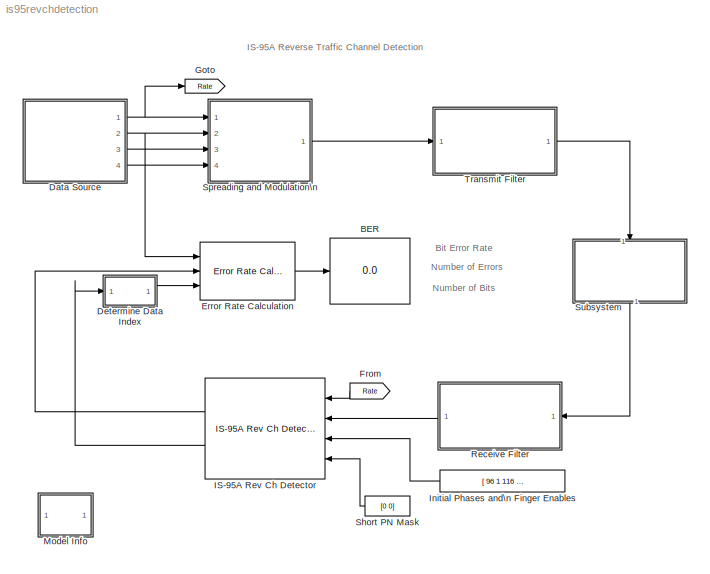
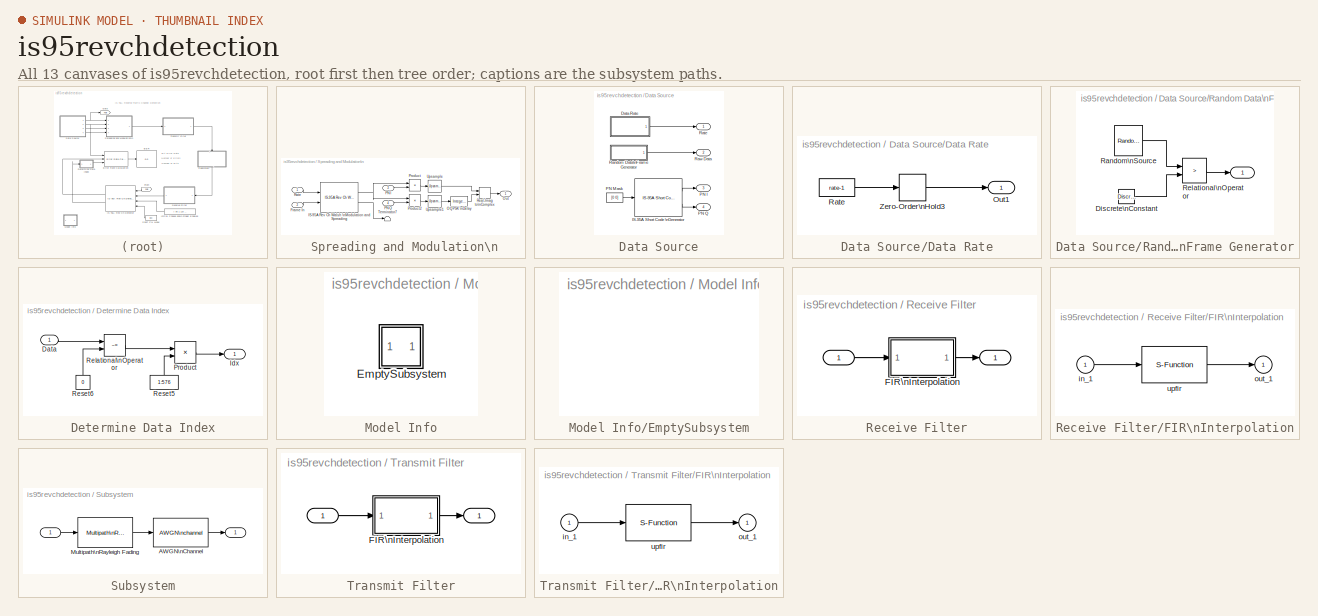
[diagram: thumbnail index - all 13 canvases of the model, root first then tree order]
MODEL is95revchdetection
KIND model
CONFIG AbsTol = 1e-6
CONFIG FixedStep = auto
CONFIG MaxStep = auto
CONFIG MinStep = auto
CONFIG RelTol = 1e-3
CONFIG Solver = VariableStepDiscrete
CONFIG SolverMode = SingleTasking
CONFIG StartTime = 0.0
CONFIG StopTime = 2
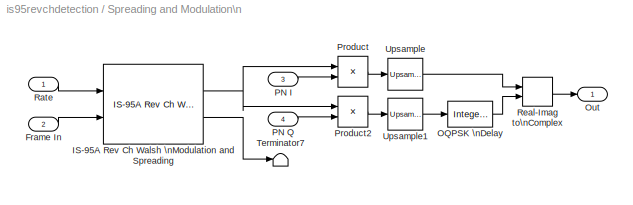
BLOCK [SubSystem]  Spreading and Modulation\n
  Ports = [4, 1]
  RTWFcnNameOpts = Auto
  RTWFileNameOpts = Auto
  RTWSystemCode = Auto
  ShowPortLabels = on
  TreatAsAtomicUnit = off
BLOCK [Inport]  Spreading and Modulation\n/Frame In
  Interpolate = on
  Port = 2
BLOCK [Reference]  Spreading and Modulation\n/IS-95A Rev Ch Walsh \nModulation and Spreading  REF=cdmalib/IS-95A Mobile Station Transmitter/IS-95A Rev Ch Walsh\nModulation and Spreading  (lib defined in mdl_250e8a714707)
  Ports = [2, 2]
  SourceBlock = cdmalib/IS-95A Mobile Station Transmitter/IS-95A Rev Ch Walsh\nModulation and Spreading
  SourceType = IS-95A Rev Ch Walsh Modulation and Spreading
  chType = Traffic
  lngCdMask = 1
  sampTime = 1/(50*384)
  wlshOrd = 6
BLOCK [Reference]  Spreading and Modulation\n/OQPSK \nDelay  REF=dspbdsp2/Integer Delay
  Ports = [1, 1]
  SourceBlock = dspbdsp2/Integer Delay
  SourceType = Integer Delay
  delay = 4
  df = on
  frame = on
  ic = 0
  numChans = 1
BLOCK [Outport]  Spreading and Modulation\n/Out 
  InitialOutput = []
  OutputWhenDisabled = held
  Port = 1
BLOCK [Inport]  Spreading and Modulation\n/PN I
  Interpolate = on
  Port = 3
BLOCK [Inport]  Spreading and Modulation\n/PN Q
  Interpolate = on
  Port = 4
BLOCK [Product]  Spreading and Modulation\n/Product
  Inputs = 2
  Multiplication = Element-wise(.*)
  Ports = [2, 1]
  SaturateOnIntegerOverflow = on
BLOCK [Product]  Spreading and Modulation\n/Product2
  Inputs = 2
  Multiplication = Element-wise(.*)
  Ports = [2, 1]
  SaturateOnIntegerOverflow = on
BLOCK [Inport]  Spreading and Modulation\n/Rate
  Interpolate = on
  Port = 1
BLOCK [RealImagToComplex]  Spreading and Modulation\n/Real-Imag to\nComplex
  ConstantPart = 0
  Input = RealAndImag
  Ports = [2, 1]
BLOCK [Terminator]  Spreading and Modulation\n/Terminator7
BLOCK [Reference]  Spreading and Modulation\n/Upsample  REF=dspbdsp2/Upsample
  N = 8
  Ports = [1, 1]
  SourceBlock = dspbdsp2/Upsample
  SourceType = Upsample
  frame = on
  ic = 0
  mode = Maintain input frame rate
  nchans = 1
  phase = 0
BLOCK [Reference]  Spreading and Modulation\n/Upsample1  REF=dspbdsp2/Upsample
  N = 8
  Ports = [1, 1]
  SourceBlock = dspbdsp2/Upsample
  SourceType = Upsample
  frame = on
  ic = 0
  mode = Maintain input frame rate
  nchans = 1
  phase = 0
BLOCK [Display] BER
  Decimation = 1
  Floating = off
  Format = short
  Ports = [1]
  SampleTime = -1
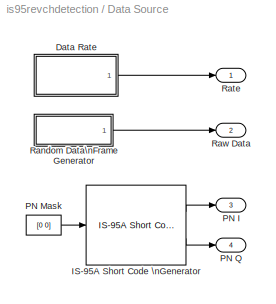
BLOCK [SubSystem] Data Source
  Ports = [0, 4]
  RTWFcnNameOpts = Auto
  RTWFileNameOpts = Auto
  RTWSystemCode = Auto
  ShowPortLabels = on
  TreatAsAtomicUnit = off
BLOCK [SubSystem] Data Source/Data Rate
  MaskDisplay = disp('Mobile Station \\n Transmitter \\nData Rate')
  MaskEnableString = on
  MaskIconFrame = on
  MaskIconOpaque = on
  MaskIconRotate = none
  MaskIconUnits = autoscale
  MaskPromptString = Data Rate
  MaskStyleString = popup(Full|Half|Quarter|One-Eighth)
  MaskToolTipString = on
  MaskTunableValueString = on
  MaskValueString = Full
  MaskVariables = rate=@1;
  MaskVisibilityString = on
  Ports = [0, 1]
  RTWFcnNameOpts = Auto
  RTWFileNameOpts = Auto
  RTWSystemCode = Auto
  ShowPortLabels = on
  TreatAsAtomicUnit = off
BLOCK [Outport] Data Source/Data Rate/Out1
  InitialOutput = 0
  OutputWhenDisabled = held
  Port = 1
BLOCK [Constant] Data Source/Data Rate/Rate
  Value = rate-1
  VectorParams1D = on
BLOCK [ZeroOrderHold] Data Source/Data Rate/Zero-Order\nHold3
  SampleTime = 1/50
BLOCK [Reference] Data Source/IS-95A Short Code \nGenerator  REF=cdmalib/IS-95A Common/IS-95A Short Code\nGenerator  (lib defined in mdl_250e8a714707)
  Ports = [1, 2]
  SourceBlock = cdmalib/IS-95A Common/IS-95A Short Code\nGenerator
  SourceType = IS-95A Short Code Generator
  numOut = 64
  sampTime = 1/(50*384)
BLOCK [Outport] Data Source/PN I
  InitialOutput = 0
  OutputWhenDisabled = held
  Port = 3
BLOCK [Constant] Data Source/PN Mask
  Value = [0 0]
  VectorParams1D = on
BLOCK [Outport] Data Source/PN Q
  InitialOutput = 0
  OutputWhenDisabled = held
  Port = 4
BLOCK [SubSystem] Data Source/Random Data\nFrame Generator
  MaskCallbackString = ||
  MaskDescription = Generate a random frame of binary integers. The output frame period is \n(Sample time) * (Output frame size).
  MaskDisplay = plot(0,0,100,100,[95,90,90,80,80,60,60,30,30,20,20,10,10,5],[25,25,75,75,25,25,75,75,25,25,75,75,25,25]);
  MaskEnableString = on,on,on
  MaskIconFrame = on
  MaskIconOpaque = on
  MaskIconRotate = none
  MaskIconUnits = autoscale
  MaskPromptString = Initial seed:|Sample time (sec):|Output frame size:
  MaskStyleString = edit,edit,edit
  MaskToolTipString = on,on,on
  MaskTunableValueString = on,on,on
  MaskType = Random Binary Frame Generator
  MaskValueString = 119940|1/(50*576)|576
  MaskVariableAliases = ,,
  MaskVariables = seed=@1;Ts=@2;N=@3;
  MaskVisibilityString = on,on,on
  Ports = [0, 1]
  RTWFcnNameOpts = Auto
  RTWFileNameOpts = Auto
  RTWSystemCode = Auto
  ShowPortLabels = on
  TreatAsAtomicUnit = off
BLOCK [Outport] Data Source/Random Data\nFrame Generator/ 
  InitialOutput = []
  OutputWhenDisabled = held
  Port = 1
BLOCK [Reference] Data Source/Random Data\nFrame Generator/Discrete\nConstant  REF=dspsrcs2/Discrete\nConstant
  Ports = [0, 1]
  SourceBlock = dspsrcs2/Discrete\nConstant
  SourceType = Discrete Constant
  Ts = Ts*N
  Value = 0.5
BLOCK [Reference] Data Source/Random Data\nFrame Generator/Random\nSource  REF=dspsrcs2/Random\nSource
  Diagnostics = AllowInheritedTsInSrc
  Inherit = off
  Max = 1
  Mean = 0
  Min = 0
  OutComplex = Real
  Ports = [0, 1]
  SampFrame = N
  SampMode = Discrete
  SampTime = Ts
  Seed = seed
  SourceBlock = dspsrcs2/Random\nSource
  SourceType = Random Source
  SrcType = Uniform
  Var = 1
BLOCK [RelationalOperator] Data Source/Random Data\nFrame Generator/Relational\nOperator
  Operator = >
BLOCK [Outport] Data Source/Rate
  InitialOutput = 0
  OutputWhenDisabled = held
  Port = 1
BLOCK [Outport] Data Source/Raw Data
  InitialOutput = 0
  OutputWhenDisabled = held
  Port = 2
BLOCK [SubSystem] Determine Data Index
  Ports = [1, 1]
  RTWFcnNameOpts = Auto
  RTWFileNameOpts = Auto
  RTWSystemCode = Auto
  ShowPortLabels = on
  TreatAsAtomicUnit = off
BLOCK [Inport] Determine Data Index/Data
  Interpolate = on
  Port = 1
BLOCK [Outport] Determine Data Index/Idx
  InitialOutput = []
  OutputWhenDisabled = held
  Port = 1
BLOCK [Product] Determine Data Index/Product
  Inputs = 2
  Multiplication = Element-wise(.*)
  Ports = [2, 1]
  SaturateOnIntegerOverflow = on
BLOCK [RelationalOperator] Determine Data Index/Relational\nOperator
  Operator = ~=
BLOCK [Constant] Determine Data Index/Reset5
  Value = 1:576
  VectorParams1D = on
BLOCK [Constant] Determine Data Index/Reset6
  Value = 0
  VectorParams1D = on
BLOCK [Reference] Error Rate Calculation  REF=commsink/Error Rate Calculation
  N = 2*576
  PMode = Port
  Ports = [3, 1]
  RsMode2 = off
  SourceBlock = commsink/Error Rate Calculation
  SourceType = Error Rate Calculation
  WsName = ErrorVec
  cp_mode = Select samples from port
  st_delay = 2*576
  subframe = []
BLOCK [From] From
  CloseFcn = tagdialog Close
  GotoTag = Rate
BLOCK [Goto] Goto
  GotoTag = Rate
  TagVisibility = local
BLOCK [Reference] IS-95A Rev Ch Detector  REF=cdmalib/IS-95A Base Station Receiver/IS-95A Rev Ch Detector  (lib defined in mdl_250e8a714707)
  Ports = [4, 2]
  SourceBlock = cdmalib/IS-95A Base Station Receiver/IS-95A Rev Ch Detector
  SourceType = IS-95A Rev Ch Detector
  chType = Traffic
  lngcd_mask = 1
  overSamplRate = 8
  sampTime = 1/(50*384)
  wlshOrd = 6
BLOCK [Constant] Initial Phases and\n Finger Enables
  Value = [ 96 1 116 1 0 0]
  VectorParams1D = on
BLOCK [SubSystem] Model Info
  CopyFcn = slcm CopyBlock;
  DeleteFcn = slcm Cancel;
  InitFcn = slcm('UpdateAllCMBlocksInThisModelInit')
  LoadFcn = slcm LoadBlock;
  MaskCallbackString = ||||||||||||||||||||||||||||||
  MaskDescription = This block allows revision control information to be displayed within the model.
  MaskDisplay = text(str2num(LeftAlignmentValue), 0.5, MaskDisplayString, 'HorizontalAlignment', HorizontalTextAlignment)\n
  MaskEnableString = on,on,on,on,on,on,on,on,on,on,on,on,on,on,on,on,on,on,on,on,on,on,on,on,on,on,on,on,on,on,on
  MaskIconFrame = on
  MaskIconOpaque = on
  MaskIconRotate = none
  MaskIconUnits = normalized
  MaskPromptString = InitialSaveTempField|InitialBlockCM|BlockCM|Frame|SaveTempField|DisplayStringWithTags|MaskDisplayString|HorizontalTextAlignment|LeftAlignmentValue|SourceBlockDiagram|TagMaxNumber|CMTag1|CMTag2|CMTag3|CMTag4|CMTag5|CMTag6|CMTag7|CMTag8|CMTag9|CMTag10|CMTag11|CMTag12|CMTag13|CMTag14|CMTag15|CMTag16|CMTag17|CMTag18|CMTag19|CMTag20
  MaskSelfModifiable = on
  MaskStyleString = edit,edit,edit,edit,edit,edit,edit,edit,edit,edit,edit,edit,edit,edit,edit,edit,edit,edit,edit,edit,edit,edit,edit,edit,edit,edit,edit,edit,edit,edit,edit
  MaskToolTipString = on,on,on,on,on,on,on,on,on,on,on,on,on,on,on,on,on,on,on,on,on,on,on,on,on,on,on,on,on,on,on
  MaskTunableValueString = on,on,on,on,on,on,on,on,on,on,on,on,on,on,on,on,on,on,on,on,on,on,on,on,on,on,on,on,on,on,on
  MaskType = CMBlock
  MaskValueString = |none|none|on||Info|Info|Center|0.5|is95revchdetection|20||||||||||||||||||||
  MaskVariableAliases = ,,,,,,,,,,,,,,,,,,,,,,,,,,,,,,
  MaskVariables = InitialSaveTempField=&1;InitialBlockCM=&2;BlockCM=&3;Frame=&4;SaveTempField=&5;DisplayStringWithTags=&6;MaskDisplayString=&7;HorizontalTextAlignment=&8;LeftAlignmentValue=&9;SourceBlockDiagram=&10;TagMaxNumber=@11;CMTag1=&12;CMTag2=&13;CMTag3=&14;CMTag4=&15;CMTag5=&16;CMTag6=&17;CMTag7=&18;CMTag8=&19;CMTag9=&20;CMTag10=&21;CMTag11=&22;CMTag12=&23;CMTag13=&24;CMTag14=&25;CMTag15=&26;CMTag16=&27;CMT...<+45ch>
  MaskVisibilityString = off,off,off,off,off,off,off,off,off,off,off,off,off,off,off,off,off,off,off,off,off,off,off,off,off,off,off,off,off,off,off
  NameChangeFcn = slcm Rename;
  OpenFcn = cdmademohelp;
  Ports = []
  PostSaveFcn = slcm('UpdateAllCMBlocksInThisModel')
  RTWFcnNameOpts = Auto
  RTWFileNameOpts = Auto
  RTWSystemCode = Auto
  ShowPortLabels = on
  TreatAsAtomicUnit = off
BLOCK [SubSystem] Model Info/EmptySubsystem
  Ports = []
  RTWFcnNameOpts = Auto
  RTWFileNameOpts = Auto
  RTWSystemCode = Auto
  ShowPortLabels = on
  TreatAsAtomicUnit = off
BLOCK [SubSystem] Receive Filter
  MaskDescription = The length of the FIR filter is the duration of 12 PN sequence chips. The coefficient spacing and the sample time of this filter is one-eighth of the PN sequence chip duration, resulting in a total of 96 coefficients. The filter introduces a delay of 48 samples.
  MaskDisplay = plot( 1:prod( size( h)), h);
  MaskEnableString = on
  MaskIconFrame = on
  MaskIconOpaque = on
  MaskIconRotate = none
  MaskIconUnits = autoscale
  MaskInitialization = load txfiltx8.mat;\nh = (TxFiltCoefx8*N)/8;
  MaskPromptString = Interpolation factor:
  MaskStyleString = edit
  MaskToolTipString = on
  MaskTunableValueString = on
  MaskType = FIR Pulse Shaping Filter
  MaskValueString = 1
  MaskVariables = N=@1;
  MaskVisibilityString = on
  Ports = [1, 1]
  RTWFcnNameOpts = Auto
  RTWFileNameOpts = Auto
  RTWSystemCode = Auto
  ShowPortLabels = on
  TreatAsAtomicUnit = off
BLOCK [Outport] Receive Filter/ 
  InitialOutput = []
  OutputWhenDisabled = held
  Port = 1
BLOCK [Inport] Receive Filter/   
  Interpolate = on
  Port = 1
BLOCK [SubSystem] Receive Filter/FIR\nInterpolation
  MaskCallbackString = ||dspblkupfir||
  MaskDescription = Upsample input signal by an integer factor, then apply an FIR filter.  Implemented using an efficient polyphase interpolation structure.  The filter coefficients are scaled by the interpolation factor.
  MaskDisplay = disp(str)
  MaskEnableString = on,on,on,on,on
  MaskHelp = web(dspbhelp);
  MaskIconFrame = on
  MaskIconOpaque = on
  MaskIconRotate = none
  MaskIconUnits = autoscale
  MaskInitialization = outputBufInitCond = 0;\n[str,numChans] = dspblkupfir('setup1',numChans);\n[h,framing,str]= dspblkupfir('setup2',h,L,framing);
  MaskPromptString = FIR filter coefficients:|Interpolation factor:|Frame-based inputs|Number of channels:|Framing:
  MaskSelfModifiable = on
  MaskStyleString = edit,edit,checkbox,edit,popup(Maintain input frame size|Maintain input frame rate)
  MaskToolTipString = on,on,on,on,on
  MaskTunableValueString = off,off,off,off,off
  MaskType = FIR Interpolation
  MaskValueString = h|N|on|1|Maintain input frame rate
  MaskVariableAliases = ,,,,
  MaskVariables = h=@1;L=@2;frame=&3;numChans=@4;framing=@5;
  MaskVisibilityString = on,on,on,on,on
  Ports = [1, 1]
  RTWFcnNameOpts = Auto
  RTWFileNameOpts = Auto
  RTWSystemCode = Auto
  ShowPortLabels = on
  TreatAsAtomicUnit = off
BLOCK [Inport] Receive Filter/FIR\nInterpolation/in_1
  Interpolate = on
  Port = 1
BLOCK [Outport] Receive Filter/FIR\nInterpolation/out_1
  InitialOutput = 0
  OutputWhenDisabled = held
  Port = 1
BLOCK [S-Function] Receive Filter/FIR\nInterpolation/upfir
  FunctionName = sdspupfir
  Parameters = h,L,numChans,framing,outputBufInitCond
  PortCounts = []
  Ports = [1, 1]
  SFunctionModules = ''
BLOCK [Constant] Short PN Mask
  Value = [0 0]
  VectorParams1D = on
BLOCK [SubSystem] Subsystem
  MaskDisplay = disp('Rayleigh Multipath\\n and  AWGN\\nChannel')
  MaskIconFrame = on
  MaskIconOpaque = on
  MaskIconRotate = none
  MaskIconUnits = autoscale
  Ports = [1, 1]
  RTWFcnNameOpts = Auto
  RTWFileNameOpts = Auto
  RTWSystemCode = Auto
  ShowPortLabels = on
  TreatAsAtomicUnit = off
BLOCK [Inport] Subsystem/ 
  Interpolate = on
  Port = 1
BLOCK [Outport] Subsystem/  
  InitialOutput = []
  OutputWhenDisabled = held
  Port = 1
BLOCK [Reference] Subsystem/AWGN\nChannel  REF=commchan/AWGN\nchannel
  EsNodB = 10
  FrameBased = on
  Ports = [1, 1]
  Ps = 1
  SNRdB = 10
  SourceBlock = commchan/AWGN\nchannel
  SourceType = AWGN Channel
  Tsym = 1/1228800
  nChans = 1
  noiseMode = Signal to noise ratio  (Es/No)
  seed = 123456
  variance = 1
BLOCK [Reference] Subsystem/Multipath\nRayleigh Fading  REF=commchan/Multipath\nRayleigh Fading
  Fd = 14.07
  Ports = [1, 1]
  Seed = 831029
  SourceBlock = commchan/Multipath\nRayleigh Fading
  SourceType = Multipath Rayleigh Fading
  delayVec = [0 2e-6]
  gainVecdB = [0 0]
  normGain = on
  simTs = 1/(1228800*8)
BLOCK [SubSystem] Transmit Filter
  MaskDescription = The length of the FIR filter is the duration of 12 PN sequence chips. The coefficient spacing and the sample time of this filter is one-eighth of the PN sequence chip duration, resulting in a total of 96 coefficients. The filter introduces a delay of 48 samples.
  MaskDisplay = plot( 1:prod( size( h)), h);
  MaskEnableString = on
  MaskIconFrame = on
  MaskIconOpaque = on
  MaskIconRotate = none
  MaskIconUnits = autoscale
  MaskInitialization = load txfiltx8.mat;\nh = (TxFiltCoefx8*N);
  MaskPromptString = Interpolation factor:
  MaskStyleString = edit
  MaskToolTipString = on
  MaskTunableValueString = on
  MaskType = FIR Pulse Shaping Filter
  MaskValueString = 1
  MaskVariables = N=@1;
  MaskVisibilityString = on
  Ports = [1, 1]
  RTWFcnNameOpts = Auto
  RTWFileNameOpts = Auto
  RTWSystemCode = Auto
  ShowPortLabels = on
  TreatAsAtomicUnit = off
BLOCK [Outport] Transmit Filter/ 
  InitialOutput = []
  OutputWhenDisabled = held
  Port = 1
BLOCK [Inport] Transmit Filter/   
  Interpolate = on
  Port = 1
BLOCK [SubSystem] Transmit Filter/FIR\nInterpolation
  MaskCallbackString = ||dspblkupfir||
  MaskDescription = Upsample input signal by an integer factor, then apply an FIR filter.  Implemented using an efficient polyphase interpolation structure.  The filter coefficients are scaled by the interpolation factor.
  MaskDisplay = disp(str)
  MaskEnableString = on,on,on,on,on
  MaskHelp = web(dspbhelp);
  MaskIconFrame = on
  MaskIconOpaque = on
  MaskIconRotate = none
  MaskIconUnits = autoscale
  MaskInitialization = outputBufInitCond = 0;\n[str,numChans] = dspblkupfir('setup1',numChans);\n[h,framing,str]= dspblkupfir('setup2',h,L,framing);
  MaskPromptString = FIR filter coefficients:|Interpolation factor:|Frame-based inputs|Number of channels:|Framing:
  MaskSelfModifiable = on
  MaskStyleString = edit,edit,checkbox,edit,popup(Maintain input frame size|Maintain input frame rate)
  MaskToolTipString = on,on,on,on,on
  MaskTunableValueString = off,off,off,off,off
  MaskType = FIR Interpolation
  MaskValueString = h|N|on|1|Maintain input frame rate
  MaskVariableAliases = ,,,,
  MaskVariables = h=@1;L=@2;frame=&3;numChans=@4;framing=@5;
  MaskVisibilityString = on,on,on,on,on
  Ports = [1, 1]
  RTWFcnNameOpts = Auto
  RTWFileNameOpts = Auto
  RTWSystemCode = Auto
  ShowPortLabels = on
  TreatAsAtomicUnit = off
BLOCK [Inport] Transmit Filter/FIR\nInterpolation/in_1
  Interpolate = on
  Port = 1
BLOCK [Outport] Transmit Filter/FIR\nInterpolation/out_1
  InitialOutput = 0
  OutputWhenDisabled = held
  Port = 1
BLOCK [S-Function] Transmit Filter/FIR\nInterpolation/upfir
  FunctionName = sdspupfir
  Parameters = h,L,numChans,framing,outputBufInitCond
  PortCounts = []
  Ports = [1, 1]
  SFunctionModules = ''
LINE  Spreading and Modulation\n/Frame In:1 ->  Spreading and Modulation\n/IS-95A Rev Ch Walsh \nModulation and Spreading:2
NET  Spreading and Modulation\n/IS-95A Rev Ch Walsh \nModulation and Spreading:1 ->  Spreading and Modulation\n/Product2:1,  Spreading and Modulation\n/Product:1
LINE  Spreading and Modulation\n/IS-95A Rev Ch Walsh \nModulation and Spreading:2 ->  Spreading and Modulation\n/Terminator7:1
LINE  Spreading and Modulation\n/OQPSK \nDelay:1 ->  Spreading and Modulation\n/Real-Imag to\nComplex:2
LINE  Spreading and Modulation\n/PN I:1 ->  Spreading and Modulation\n/Product:2
LINE  Spreading and Modulation\n/PN Q:1 ->  Spreading and Modulation\n/Product2:2
LINE  Spreading and Modulation\n/Product2:1 ->  Spreading and Modulation\n/Upsample1:1
LINE  Spreading and Modulation\n/Product:1 ->  Spreading and Modulation\n/Upsample:1
LINE  Spreading and Modulation\n/Rate:1 ->  Spreading and Modulation\n/IS-95A Rev Ch Walsh \nModulation and Spreading:1
LINE  Spreading and Modulation\n/Real-Imag to\nComplex:1 ->  Spreading and Modulation\n/Out :1
LINE  Spreading and Modulation\n/Upsample1:1 ->  Spreading and Modulation\n/OQPSK \nDelay:1
LINE  Spreading and Modulation\n/Upsample:1 ->  Spreading and Modulation\n/Real-Imag to\nComplex:1
LINE  Spreading and Modulation\n:1 -> Transmit Filter:1
LINE Data Source/Data Rate/Rate:1 -> Data Source/Data Rate/Zero-Order\nHold3:1
LINE Data Source/Data Rate/Zero-Order\nHold3:1 -> Data Source/Data Rate/Out1:1
LINE Data Source/Data Rate:1 -> Data Source/Rate:1
LINE Data Source/IS-95A Short Code \nGenerator:1 -> Data Source/PN I:1
LINE Data Source/IS-95A Short Code \nGenerator:2 -> Data Source/PN Q:1
LINE Data Source/PN Mask:1 -> Data Source/IS-95A Short Code \nGenerator:1
LINE Data Source/Random Data\nFrame Generator/Discrete\nConstant:1 -> Data Source/Random Data\nFrame Generator/Relational\nOperator:2
LINE Data Source/Random Data\nFrame Generator/Random\nSource:1 -> Data Source/Random Data\nFrame Generator/Relational\nOperator:1
LINE Data Source/Random Data\nFrame Generator/Relational\nOperator:1 -> Data Source/Random Data\nFrame Generator/ :1
LINE Data Source/Random Data\nFrame Generator:1 -> Data Source/Raw Data:1
NET Data Source:1 ->  Spreading and Modulation\n:1, Goto:1
NET Data Source:2 ->  Spreading and Modulation\n:2, Error Rate Calculation:1
LINE Data Source:3 ->  Spreading and Modulation\n:3
LINE Data Source:4 ->  Spreading and Modulation\n:4
LINE Determine Data Index/Data:1 -> Determine Data Index/Relational\nOperator:1
LINE Determine Data Index/Product:1 -> Determine Data Index/Idx:1
LINE Determine Data Index/Relational\nOperator:1 -> Determine Data Index/Product:1
LINE Determine Data Index/Reset5:1 -> Determine Data Index/Product:2
LINE Determine Data Index/Reset6:1 -> Determine Data Index/Relational\nOperator:2
LINE Determine Data Index:1 -> Error Rate Calculation:3
LINE Error Rate Calculation:1 -> BER:1
LINE From:1 -> IS-95A Rev Ch Detector:1
LINE IS-95A Rev Ch Detector:1 -> Error Rate Calculation:2
LINE IS-95A Rev Ch Detector:2 -> Determine Data Index:1
LINE Initial Phases and\n Finger Enables:1 -> IS-95A Rev Ch Detector:3
LINE Receive Filter/   :1 -> Receive Filter/FIR\nInterpolation:1
LINE Receive Filter/FIR\nInterpolation/in_1:1 -> Receive Filter/FIR\nInterpolation/upfir:1
LINE Receive Filter/FIR\nInterpolation/upfir:1 -> Receive Filter/FIR\nInterpolation/out_1:1
LINE Receive Filter/FIR\nInterpolation:1 -> Receive Filter/ :1
LINE Receive Filter:1 -> IS-95A Rev Ch Detector:2
LINE Short PN Mask:1 -> IS-95A Rev Ch Detector:4
LINE Subsystem/ :1 -> Subsystem/Multipath\nRayleigh Fading:1
LINE Subsystem/AWGN\nChannel:1 -> Subsystem/  :1
LINE Subsystem/Multipath\nRayleigh Fading:1 -> Subsystem/AWGN\nChannel:1
LINE Subsystem:1 -> Receive Filter:1
LINE Transmit Filter/   :1 -> Transmit Filter/FIR\nInterpolation:1
LINE Transmit Filter/FIR\nInterpolation/in_1:1 -> Transmit Filter/FIR\nInterpolation/upfir:1
LINE Transmit Filter/FIR\nInterpolation/upfir:1 -> Transmit Filter/FIR\nInterpolation/out_1:1
LINE Transmit Filter/FIR\nInterpolation:1 -> Transmit Filter/ :1
LINE Transmit Filter:1 -> Subsystem:1
note: NET lines group one-source signal fan-out (src -> all destinations, sorted); 1:1 wires keep LINE
